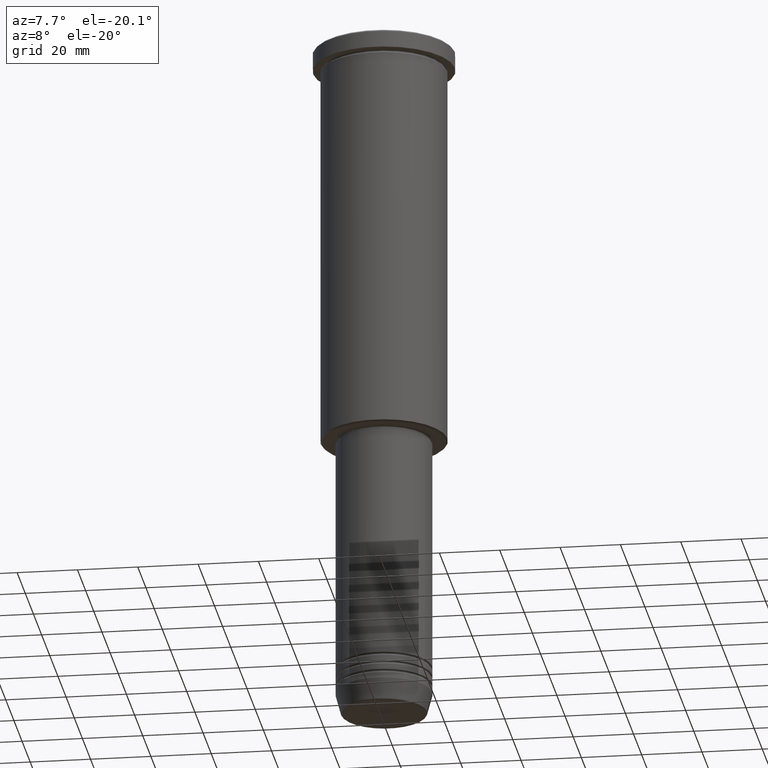
[diagram: clean part render]
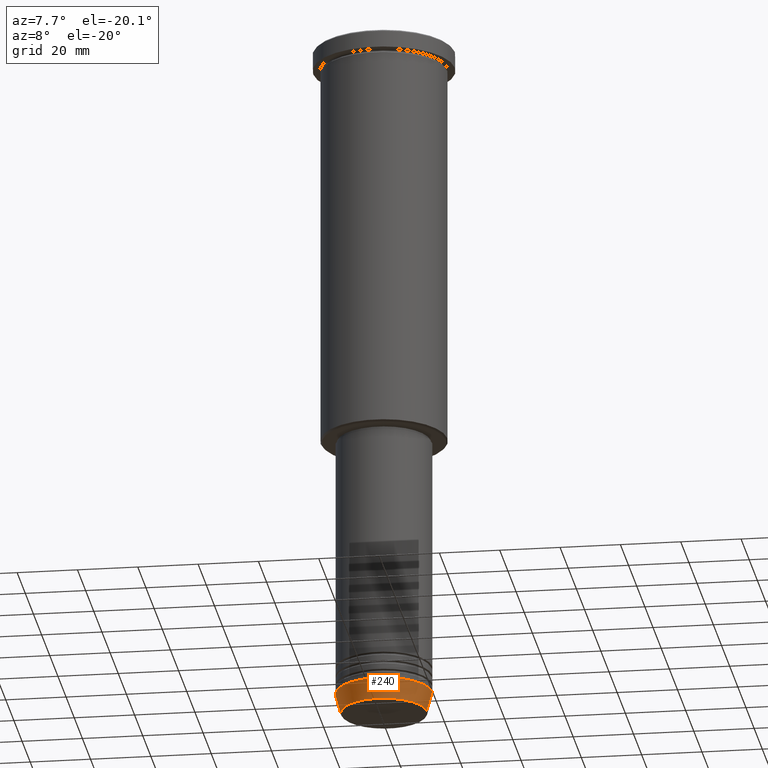
[diagram: same view with one face highlighted and labeled with its STEP entity id]
A machine part, auxiliary view. The second image highlights one B-rep face of the part: STEP entity #240.
In plain terms, the highlighted conical surface has half-angle 15 deg.
Its self-contained STEP definition (entity closure, byte-faithful):
#11 = EDGE_CURVE ( 'NONE', #588, #341, #1009, .T. ) ;
#26 = CONICAL_SURFACE ( 'NONE', #395, 16.00000000000000000, 0.2617993877991500740 ) ;
#53 = FACE_OUTER_BOUND ( 'NONE', #1007, .T. ) ;
#57 = CARTESIAN_POINT ( 'NONE',  ( 0.000000000000000000, 0.000000000000000000, -224.0000000000000000 ) ) ;
#99 = ORIENTED_EDGE ( 'NONE', *, *, #856, .F. ) ;
#119 = VECTOR ( 'NONE', #697, 1000.000000000000000 ) ;
#127 = CARTESIAN_POINT ( 'NONE',  ( 16.00000000000000000, 0.000000000000000000, -224.0000000000000000 ) ) ;
#146 = DIRECTION ( 'NONE',  ( 1.000000000000000000, 0.000000000000000000, 0.000000000000000000 ) ) ;
#240 = ADVANCED_FACE ( 'NONE', ( #53 ), #26, .T. ) ;
#248 = AXIS2_PLACEMENT_3D ( 'NONE', #57, #517, #295 ) ;
#295 = DIRECTION ( 'NONE',  ( 1.000000000000000000, 0.000000000000000000, 0.000000000000000000 ) ) ;
#328 = VERTEX_POINT ( 'NONE', #622 ) ;
#341 = VERTEX_POINT ( 'NONE', #798 ) ;
#362 = DIRECTION ( 'NONE',  ( -0.2588190451025213501, 3.169619151431772337E-17, 0.9659258262890680902 ) ) ;
#395 = AXIS2_PLACEMENT_3D ( 'NONE', #770, #501, #146 ) ;
#401 = VECTOR ( 'NONE', #362, 1000.000000000000000 ) ;
#494 = VERTEX_POINT ( 'NONE', #127 ) ;
#501 = DIRECTION ( 'NONE',  ( -0.000000000000000000, -0.000000000000000000, 1.000000000000000000 ) ) ;
#517 = DIRECTION ( 'NONE',  ( -0.000000000000000000, -0.000000000000000000, 1.000000000000000000 ) ) ;
#562 = CARTESIAN_POINT ( 'NONE',  ( -14.22365507213719660, 1.850665122131324126E-15, -230.6294095225512706 ) ) ;
#588 = VERTEX_POINT ( 'NONE', #562 ) ;
#622 = CARTESIAN_POINT ( 'NONE',  ( -16.00000000000000000, 1.959434878635765131E-15, -224.0000000000000000 ) ) ;
#660 = DIRECTION ( 'NONE',  ( -0.000000000000000000, -0.000000000000000000, 1.000000000000000000 ) ) ;
#666 = CARTESIAN_POINT ( 'NONE',  ( 0.000000000000000000, 0.000000000000000000, -230.6294095225512706 ) ) ;
#697 = DIRECTION ( 'NONE',  ( 0.2588190451025213501, 0.000000000000000000, 0.9659258262890680902 ) ) ;
#745 = CARTESIAN_POINT ( 'NONE',  ( -16.00000000000000000, 1.959434878635765131E-15, -224.0000000000000000 ) ) ;
#770 = CARTESIAN_POINT ( 'NONE',  ( 0.000000000000000000, 0.000000000000000000, -224.0000000000000000 ) ) ;
#798 = CARTESIAN_POINT ( 'NONE',  ( 14.22365507213719660, 0.000000000000000000, -230.6294095225512706 ) ) ;
#823 = AXIS2_PLACEMENT_3D ( 'NONE', #666, #660, #1125 ) ;
#835 = LINE ( 'NONE', #745, #401 ) ;
#856 = EDGE_CURVE ( 'NONE', #588, #328, #835, .T. ) ;
#862 = CIRCLE ( 'NONE', #248, 16.00000000000000000 ) ;
#941 = ORIENTED_EDGE ( 'NONE', *, *, #1143, .T. ) ;
#961 = CARTESIAN_POINT ( 'NONE',  ( 16.00000000000000000, 0.000000000000000000, -224.0000000000000000 ) ) ;
#993 = ORIENTED_EDGE ( 'NONE', *, *, #1165, .F. ) ;
#1007 = EDGE_LOOP ( 'NONE', ( #99, #1088, #941, #993 ) ) ;
#1009 = CIRCLE ( 'NONE', #823, 14.22365507213719660 ) ;
#1061 = LINE ( 'NONE', #961, #119 ) ;
#1088 = ORIENTED_EDGE ( 'NONE', *, *, #11, .T. ) ;
#1125 = DIRECTION ( 'NONE',  ( 1.000000000000000000, 0.000000000000000000, 0.000000000000000000 ) ) ;
#1143 = EDGE_CURVE ( 'NONE', #341, #494, #1061, .T. ) ;
#1165 = EDGE_CURVE ( 'NONE', #328, #494, #862, .T. ) ;